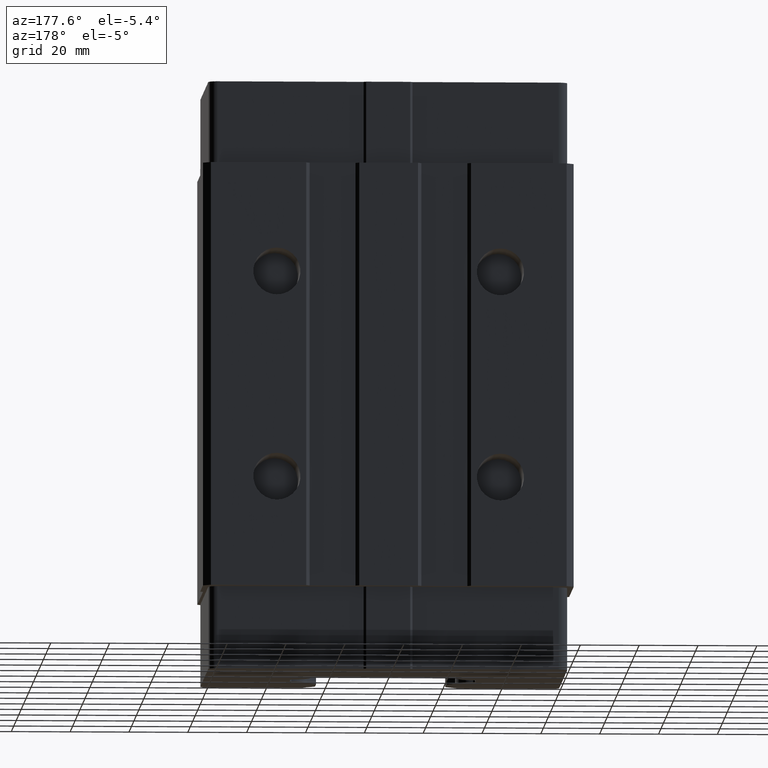
[diagram: clean part render]
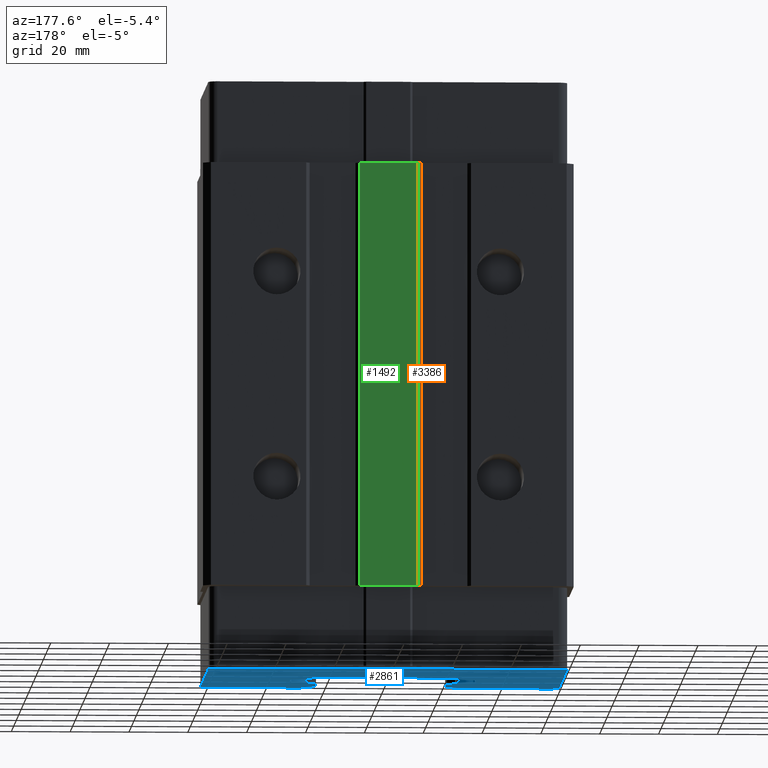
[diagram: same view with three faces highlighted in distinct colors, each labeled with its STEP entity id]
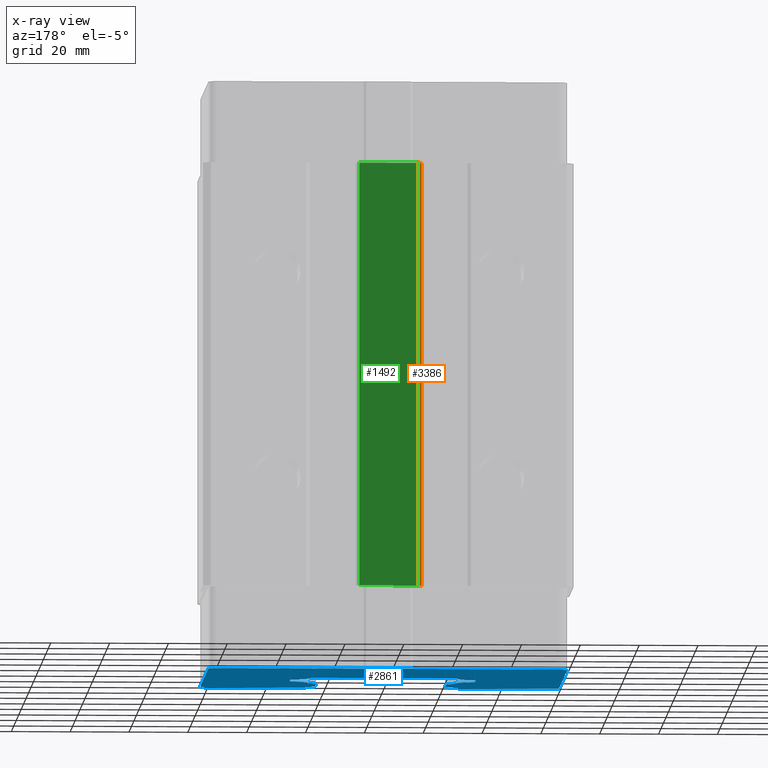
[diagram: x-ray of the same camera — body ghosted, the three highlighted faces saturated]
A machine part, auxiliary view with three faces highlighted in distinct colors.
The next image is the same camera in x-ray (body ghosted, the three faces saturated) — at least one of them is partly hidden behind the body in this view.
Their STEP definitions:

[orange] entity #3386 — the highlighted planar face has unit normal (-0.7071, 0.7071, 0).
#3327 = VERTEX_POINT ( 'NONE', #10679 ) ;
#3330 = EDGE_CURVE ( 'NONE', #3400, #3336, #10743, .T. ) ;
#3336 = VERTEX_POINT ( 'NONE', #10729 ) ;
#3337 = ORIENTED_EDGE ( 'NONE', *, *, #3396, .F. ) ;
#3340 = EDGE_LOOP ( 'NONE', ( #3388, #3389, #3337, #3397 ) ) ;
#3386 = ADVANCED_FACE ( 'NONE', ( #10784 ), #10782, .T. ) ;
#3388 = ORIENTED_EDGE ( 'NONE', *, *, #3407, .F. ) ;
#3389 = ORIENTED_EDGE ( 'NONE', *, *, #3390, .T. ) ;
#3390 = EDGE_CURVE ( 'NONE', #3327, #3391, #10841, .T. ) ;
#3391 = VERTEX_POINT ( 'NONE', #10837 ) ;
#3396 = EDGE_CURVE ( 'NONE', #3400, #3391, #10826, .T. ) ;
#3397 = ORIENTED_EDGE ( 'NONE', *, *, #3330, .T. ) ;
#3400 = VERTEX_POINT ( 'NONE', #10822 ) ;
#3407 = EDGE_CURVE ( 'NONE', #3327, #3336, #10868, .T. ) ;
#10679 = CARTESIAN_POINT ( 'NONE',  ( -10.00000000000000200, 37.00000000000000000, -72.09999999999999400 ) ) ;
#10729 = CARTESIAN_POINT ( 'NONE',  ( -10.00000000000000200, 37.00000000000000000, 72.09999999999999400 ) ) ;
#10735 = DIRECTION ( 'NONE',  ( 0.7071091381847192100, 0.7071044241805192200, 0.0000000000000000000 ) ) ;
#10736 = VECTOR ( 'NONE', #10735, 1000.000000000000000 ) ;
#10737 = CARTESIAN_POINT ( 'NONE',  ( -10.00000000000000000, 37.00000000000000000, 72.09999999999999400 ) ) ;
#10743 = LINE ( 'NONE', #10737, #10736 ) ;
#10778 = DIRECTION ( 'NONE',  ( -0.7071091381847192100, -0.7071044241805192200, 0.0000000000000000000 ) ) ;
#10779 = DIRECTION ( 'NONE',  ( -0.7071044241805192200, 0.7071091381847192100, 0.0000000000000000000 ) ) ;
#10780 = CARTESIAN_POINT ( 'NONE',  ( -10.00000000000000000, 37.00000000000000000, -72.09999999999999400 ) ) ;
#10781 = AXIS2_PLACEMENT_3D ( 'NONE', #10780, #10779, #10778 ) ;
#10782 = PLANE ( 'NONE',  #10781 ) ;
#10784 = FACE_OUTER_BOUND ( 'NONE', #3340, .T. ) ;
#10822 = CARTESIAN_POINT ( 'NONE',  ( -11.20000799995927000, 35.79999999999926500, 72.09999999999999400 ) ) ;
#10823 = DIRECTION ( 'NONE',  ( 0.0000000000000000000, 0.0000000000000000000, -1.000000000000000000 ) ) ;
#10824 = VECTOR ( 'NONE', #10823, 1000.000000000000000 ) ;
#10825 = CARTESIAN_POINT ( 'NONE',  ( -11.20000799996000000, 35.79999999999999700, -72.09999999999999400 ) ) ;
#10826 = LINE ( 'NONE', #10825, #10824 ) ;
#10837 = CARTESIAN_POINT ( 'NONE',  ( -11.20000799995927000, 35.79999999999926500, -72.09999999999999400 ) ) ;
#10838 = DIRECTION ( 'NONE',  ( -0.7071091381847192100, -0.7071044241805192200, 0.0000000000000000000 ) ) ;
#10839 = VECTOR ( 'NONE', #10838, 1000.000000000000000 ) ;
#10840 = CARTESIAN_POINT ( 'NONE',  ( -10.00000000000000000, 37.00000000000000000, -72.09999999999999400 ) ) ;
#10841 = LINE ( 'NONE', #10840, #10839 ) ;
#10865 = DIRECTION ( 'NONE',  ( 0.0000000000000000000, 0.0000000000000000000, 1.000000000000000000 ) ) ;
#10866 = VECTOR ( 'NONE', #10865, 1000.000000000000000 ) ;
#10867 = CARTESIAN_POINT ( 'NONE',  ( -10.00000000000000000, 37.00000000000000000, -72.09999999999999400 ) ) ;
#10868 = LINE ( 'NONE', #10867, #10866 ) ;

[blue] entity #2861 — the highlighted planar face has unit normal (0, 0, 1).
#11 = EDGE_CURVE ( 'NONE', #20, #1022, #3865, .T. ) ;
#20 = VERTEX_POINT ( 'NONE', #3908 ) ;
#26 = EDGE_CURVE ( 'NONE', #599, #20, #3901, .T. ) ;
#43 = EDGE_CURVE ( 'NONE', #471, #992, #3941, .T. ) ;
#58 = VERTEX_POINT ( 'NONE', #3923 ) ;
#108 = EDGE_CURVE ( 'NONE', #1001, #58, #4050, .T. ) ;
#283 = EDGE_CURVE ( 'NONE', #343, #1499, #4387, .T. ) ;
#343 = VERTEX_POINT ( 'NONE', #4475 ) ;
#345 = VERTEX_POINT ( 'NONE', #4470 ) ;
#371 = EDGE_CURVE ( 'NONE', #345, #343, #4495, .T. ) ;
#471 = VERTEX_POINT ( 'NONE', #4653 ) ;
#474 = EDGE_CURVE ( 'NONE', #1012, #471, #4648, .T. ) ;
#501 = EDGE_CURVE ( 'NONE', #1500, #1496, #4719, .T. ) ;
#569 = VERTEX_POINT ( 'NONE', #4837 ) ;
#570 = VERTEX_POINT ( 'NONE', #4839 ) ;
#572 = EDGE_CURVE ( 'NONE', #570, #599, #4901, .T. ) ;
#586 = EDGE_CURVE ( 'NONE', #569, #1001, #4874, .T. ) ;
#599 = VERTEX_POINT ( 'NONE', #4919 ) ;
#837 = EDGE_CURVE ( 'NONE', #6810, #1159, #5357, .T. ) ;
#920 = EDGE_CURVE ( 'NONE', #921, #3692, #5488, .T. ) ;
#921 = VERTEX_POINT ( 'NONE', #5483 ) ;
#932 = EDGE_CURVE ( 'NONE', #6841, #345, #5480, .T. ) ;
#992 = VERTEX_POINT ( 'NONE', #5540 ) ;
#993 = EDGE_CURVE ( 'NONE', #992, #994, #5539, .T. ) ;
#994 = VERTEX_POINT ( 'NONE', #5535 ) ;
#1001 = VERTEX_POINT ( 'NONE', #5528 ) ;
#1002 = VERTEX_POINT ( 'NONE', #5527 ) ;
#1012 = VERTEX_POINT ( 'NONE', #5571 ) ;
#1016 = EDGE_CURVE ( 'NONE', #1496, #1012, #5570, .T. ) ;
#1019 = EDGE_CURVE ( 'NONE', #1022, #1002, #5560, .T. ) ;
#1022 = VERTEX_POINT ( 'NONE', #5615 ) ;
#1069 = EDGE_CURVE ( 'NONE', #1002, #3885, #5705, .T. ) ;
#1078 = EDGE_CURVE ( 'NONE', #3821, #1079, #5684, .T. ) ;
#1079 = VERTEX_POINT ( 'NONE', #5741 ) ;
#1088 = VERTEX_POINT ( 'NONE', #5728 ) ;
#1096 = EDGE_CURVE ( 'NONE', #1079, #1088, #5716, .T. ) ;
#1105 = EDGE_CURVE ( 'NONE', #1128, #1107, #5768, .T. ) ;
#1107 = VERTEX_POINT ( 'NONE', #5764 ) ;
#1122 = EDGE_CURVE ( 'NONE', #1088, #1128, #5744, .T. ) ;
#1128 = VERTEX_POINT ( 'NONE', #5795 ) ;
#1129 = VERTEX_POINT ( 'NONE', #5794 ) ;
#1137 = EDGE_CURVE ( 'NONE', #1107, #1129, #5785, .T. ) ;
#1143 = EDGE_CURVE ( 'NONE', #3819, #3709, #5780, .T. ) ;
#1155 = EDGE_CURVE ( 'NONE', #1129, #3822, #5819, .T. ) ;
#1159 = VERTEX_POINT ( 'NONE', #5810 ) ;
#1496 = VERTEX_POINT ( 'NONE', #6399 ) ;
#1498 = EDGE_CURVE ( 'NONE', #1499, #1500, #6398, .T. ) ;
#1499 = VERTEX_POINT ( 'NONE', #6392 ) ;
#1500 = VERTEX_POINT ( 'NONE', #6391 ) ;
#2861 = ADVANCED_FACE ( 'NONE', ( #10005 ), #10004, .F. ) ;
#2862 = EDGE_LOOP ( 'NONE', ( #2863, #2864, #2865, #2866, #2941, #2942, #2943, #2944, #2945, #2946, #2947, #2948, #2949, #2929, #2930, #2931, #2932, #2933, #2934, #2935, #2936, #2937, #2940, #2921, #2922, #2923, #2924, #2925, #2926, #2927, #2928, #2908, #2909, #2910, #2911, #2912 ) ) ;
#2863 = ORIENTED_EDGE ( 'NONE', *, *, #6926, .F. ) ;
#2864 = ORIENTED_EDGE ( 'NONE', *, *, #837, .F. ) ;
#2865 = ORIENTED_EDGE ( 'NONE', *, *, #6813, .F. ) ;
#2866 = ORIENTED_EDGE ( 'NONE', *, *, #3722, .T. ) ;
#2908 = ORIENTED_EDGE ( 'NONE', *, *, #501, .F. ) ;
#2909 = ORIENTED_EDGE ( 'NONE', *, *, #1498, .F. ) ;
#2910 = ORIENTED_EDGE ( 'NONE', *, *, #283, .F. ) ;
#2911 = ORIENTED_EDGE ( 'NONE', *, *, #371, .F. ) ;
#2912 = ORIENTED_EDGE ( 'NONE', *, *, #932, .F. ) ;
#2920 = EDGE_CURVE ( 'NONE', #2951, #2939, #10036, .T. ) ;
#2921 = ORIENTED_EDGE ( 'NONE', *, *, #2950, .F. ) ;
#2922 = ORIENTED_EDGE ( 'NONE', *, *, #108, .F. ) ;
#2923 = ORIENTED_EDGE ( 'NONE', *, *, #586, .F. ) ;
#2924 = ORIENTED_EDGE ( 'NONE', *, *, #13615, .F. ) ;
#2925 = ORIENTED_EDGE ( 'NONE', *, *, #993, .F. ) ;
#2926 = ORIENTED_EDGE ( 'NONE', *, *, #43, .F. ) ;
#2927 = ORIENTED_EDGE ( 'NONE', *, *, #474, .F. ) ;
#2928 = ORIENTED_EDGE ( 'NONE', *, *, #1016, .F. ) ;
#2929 = ORIENTED_EDGE ( 'NONE', *, *, #1069, .F. ) ;
#2930 = ORIENTED_EDGE ( 'NONE', *, *, #1019, .F. ) ;
#2931 = ORIENTED_EDGE ( 'NONE', *, *, #11, .F. ) ;
#2932 = ORIENTED_EDGE ( 'NONE', *, *, #26, .F. ) ;
#2933 = ORIENTED_EDGE ( 'NONE', *, *, #572, .F. ) ;
#2934 = ORIENTED_EDGE ( 'NONE', *, *, #13633, .F. ) ;
#2935 = ORIENTED_EDGE ( 'NONE', *, *, #3762, .F. ) ;
#2936 = ORIENTED_EDGE ( 'NONE', *, *, #920, .F. ) ;
#2937 = ORIENTED_EDGE ( 'NONE', *, *, #2938, .F. ) ;
#2938 = EDGE_CURVE ( 'NONE', #2939, #921, #10031, .T. ) ;
#2939 = VERTEX_POINT ( 'NONE', #9632 ) ;
#2940 = ORIENTED_EDGE ( 'NONE', *, *, #2920, .F. ) ;
#2941 = ORIENTED_EDGE ( 'NONE', *, *, #1143, .F. ) ;
#2942 = ORIENTED_EDGE ( 'NONE', *, *, #3875, .T. ) ;
#2943 = ORIENTED_EDGE ( 'NONE', *, *, #1155, .F. ) ;
#2944 = ORIENTED_EDGE ( 'NONE', *, *, #1137, .F. ) ;
#2945 = ORIENTED_EDGE ( 'NONE', *, *, #1105, .F. ) ;
#2946 = ORIENTED_EDGE ( 'NONE', *, *, #1122, .F. ) ;
#2947 = ORIENTED_EDGE ( 'NONE', *, *, #1096, .F. ) ;
#2948 = ORIENTED_EDGE ( 'NONE', *, *, #1078, .F. ) ;
#2949 = ORIENTED_EDGE ( 'NONE', *, *, #3879, .F. ) ;
#2950 = EDGE_CURVE ( 'NONE', #58, #2951, #9631, .T. ) ;
#2951 = VERTEX_POINT ( 'NONE', #9627 ) ;
#3668 = VERTEX_POINT ( 'NONE', #11269 ) ;
#3692 = VERTEX_POINT ( 'NONE', #11302 ) ;
#3693 = VERTEX_POINT ( 'NONE', #11301 ) ;
#3709 = VERTEX_POINT ( 'NONE', #11343 ) ;
#3722 = EDGE_CURVE ( 'NONE', #3668, #3709, #11384, .T. ) ;
#3762 = EDGE_CURVE ( 'NONE', #3692, #3693, #11441, .T. ) ;
#3819 = VERTEX_POINT ( 'NONE', #11531 ) ;
#3821 = VERTEX_POINT ( 'NONE', #11526 ) ;
#3822 = VERTEX_POINT ( 'NONE', #11525 ) ;
#3862 = DIRECTION ( 'NONE',  ( -0.7071067811865474600, -0.7071067811865474600, 0.0000000000000000000 ) ) ;
#3863 = VECTOR ( 'NONE', #3862, 1000.000000000000100 ) ;
#3864 = CARTESIAN_POINT ( 'NONE',  ( 24.99110789035000100, -21.00889410965000100, -100.0999999999999900 ) ) ;
#3865 = LINE ( 'NONE', #3864, #3863 ) ;
#3875 = EDGE_CURVE ( 'NONE', #3819, #3822, #11601, .T. ) ;
#3879 = EDGE_CURVE ( 'NONE', #3885, #3821, #11596, .T. ) ;
#3885 = VERTEX_POINT ( 'NONE', #11639 ) ;
#3897 = DIRECTION ( 'NONE',  ( 1.000000000000000000, 0.0000000000000000000, 0.0000000000000000000 ) ) ;
#3898 = DIRECTION ( 'NONE',  ( 0.0000000000000000000, 0.0000000000000000000, 1.000000000000000000 ) ) ;
#3899 = CARTESIAN_POINT ( 'NONE',  ( 30.99002214876000500, -21.12303314876000100, -100.0999999999999900 ) ) ;
#3900 = AXIS2_PLACEMENT_3D ( 'NONE', #3899, #3898, #3897 ) ;
#3901 = CIRCLE ( 'NONE', #3900, 5.999999999999998200 ) ;
#3908 = CARTESIAN_POINT ( 'NONE',  ( 24.99110789035016100, -21.00889410964983700, -100.0999999999999900 ) ) ;
#3923 = CARTESIAN_POINT ( 'NONE',  ( -24.99112634544163600, -1.991095764033635100, -100.0999999999999900 ) ) ;
#3937 = DIRECTION ( 'NONE',  ( 1.000000000000000000, 0.0000000000000000000, 0.0000000000000000000 ) ) ;
#3938 = DIRECTION ( 'NONE',  ( 0.0000000000000000000, 0.0000000000000000000, 1.000000000000000000 ) ) ;
#3939 = CARTESIAN_POINT ( 'NONE',  ( -30.99002214876000500, -21.12303314876000100, -100.0999999999999900 ) ) ;
#3940 = AXIS2_PLACEMENT_3D ( 'NONE', #3939, #3938, #3937 ) ;
#3941 = CIRCLE ( 'NONE', #3940, 5.999999999999998200 ) ;
#4046 = DIRECTION ( 'NONE',  ( 1.000000000000000000, 0.0000000000000000000, 0.0000000000000000000 ) ) ;
#4047 = DIRECTION ( 'NONE',  ( 0.0000000000000000000, 0.0000000000000000000, 1.000000000000000000 ) ) ;
#4048 = CARTESIAN_POINT ( 'NONE',  ( -30.99002214876000500, -1.875990851243000100, -100.0999999999999900 ) ) ;
#4049 = AXIS2_PLACEMENT_3D ( 'NONE', #4048, #4047, #4046 ) ;
#4050 = CIRCLE ( 'NONE', #4049, 5.999999999999998200 ) ;
#4384 = DIRECTION ( 'NONE',  ( 0.7071067811865479100, 0.7071067811865472400, 0.0000000000000000000 ) ) ;
#4385 = VECTOR ( 'NONE', #4384, 999.9999999999998900 ) ;
#4386 = CARTESIAN_POINT ( 'NONE',  ( -27.05901150420000100, -37.91759014795999900, -100.0999999999999900 ) ) ;
#4387 = LINE ( 'NONE', #4386, #4385 ) ;
#4470 = CARTESIAN_POINT ( 'NONE',  ( -58.01602084604000000, -37.91938982693999800, -100.0999999999999900 ) ) ;
#4475 = CARTESIAN_POINT ( 'NONE',  ( -27.05901150419999400, -37.91759014795999100, -100.0999999999999900 ) ) ;
#4492 = DIRECTION ( 'NONE',  ( 0.9999999983101735000, 5.813478159621304000E-005, 0.0000000000000000000 ) ) ;
#4493 = VECTOR ( 'NONE', #4492, 1000.000000000000100 ) ;
#4494 = CARTESIAN_POINT ( 'NONE',  ( -58.01602084604000000, -37.91938982693999800, -100.0999999999999900 ) ) ;
#4495 = LINE ( 'NONE', #4494, #4493 ) ;
#4647 = CARTESIAN_POINT ( 'NONE',  ( -22.53933982822000100, -23.46066217178000100, -100.0999999999999900 ) ) ;
#4648 = LINE ( 'NONE', #4647, #4709 ) ;
#4653 = CARTESIAN_POINT ( 'NONE',  ( -24.99110789035032100, -21.00889410964984400, -100.0999999999999900 ) ) ;
#4708 = DIRECTION ( 'NONE',  ( -0.7071067811865474600, 0.7071067811865474600, 0.0000000000000000000 ) ) ;
#4709 = VECTOR ( 'NONE', #4708, 1000.000000000000100 ) ;
#4716 = DIRECTION ( 'NONE',  ( 0.0000000000000000000, 1.000000000000000000, 0.0000000000000000000 ) ) ;
#4717 = VECTOR ( 'NONE', #4716, 1000.000000000000000 ) ;
#4718 = CARTESIAN_POINT ( 'NONE',  ( -22.10000000000000100, 0.0000000000000000000, -100.0999999999999900 ) ) ;
#4719 = LINE ( 'NONE', #4718, #4717 ) ;
#4837 = CARTESIAN_POINT ( 'NONE',  ( -31.50000000000000000, -8.499969418590000100, -100.0999999999999900 ) ) ;
#4839 = CARTESIAN_POINT ( 'NONE',  ( 31.49999999999981200, -14.50000199998999900, -100.0999999999999900 ) ) ;
#4871 = DIRECTION ( 'NONE',  ( 0.7071067811866975600, 0.7071067811863974700, 0.0000000000000000000 ) ) ;
#4872 = VECTOR ( 'NONE', #4871, 1000.000000000000100 ) ;
#4873 = CARTESIAN_POINT ( 'NONE',  ( -31.50000000000000000, -8.499969418590000100, -100.0999999999999900 ) ) ;
#4874 = LINE ( 'NONE', #4873, #4872 ) ;
#4898 = DIRECTION ( 'NONE',  ( -0.7071067811861976300, -0.7071067811868975200, 0.0000000000000000000 ) ) ;
#4899 = VECTOR ( 'NONE', #4898, 999.9999999999998900 ) ;
#4900 = CARTESIAN_POINT ( 'NONE',  ( 31.50000000000000000, -14.50000199998999900, -100.0999999999999900 ) ) ;
#4901 = LINE ( 'NONE', #4900, #4899 ) ;
#4919 = CARTESIAN_POINT ( 'NONE',  ( 30.87588310964506300, -15.12411889035040600, -100.0999999999999900 ) ) ;
#5353 = DIRECTION ( 'NONE',  ( 1.000000000000000000, 0.0000000000000000000, 0.0000000000000000000 ) ) ;
#5354 = DIRECTION ( 'NONE',  ( 0.0000000000000000000, 0.0000000000000000000, 1.000000000000000000 ) ) ;
#5355 = CARTESIAN_POINT ( 'NONE',  ( -58.01602084604000000, 29.08061017305999800, -100.0999999999999900 ) ) ;
#5356 = AXIS2_PLACEMENT_3D ( 'NONE', #5355, #5354, #5353 ) ;
#5357 = CIRCLE ( 'NONE', #5356, 3.000000000000002700 ) ;
#5476 = DIRECTION ( 'NONE',  ( 1.000000000000000000, 0.0000000000000000000, 0.0000000000000000000 ) ) ;
#5477 = DIRECTION ( 'NONE',  ( 0.0000000000000000000, 0.0000000000000000000, 1.000000000000000000 ) ) ;
#5478 = CARTESIAN_POINT ( 'NONE',  ( -58.01602084604000000, -34.91938982693999800, -100.0999999999999900 ) ) ;
#5479 = AXIS2_PLACEMENT_3D ( 'NONE', #5478, #5477, #5476 ) ;
#5480 = CIRCLE ( 'NONE', #5479, 3.000000000000002700 ) ;
#5483 = CARTESIAN_POINT ( 'NONE',  ( 24.99112634544227500, -1.991095764032666100, -100.0999999999999900 ) ) ;
#5484 = DIRECTION ( 'NONE',  ( 1.000000000000000000, 0.0000000000000000000, 0.0000000000000000000 ) ) ;
#5485 = DIRECTION ( 'NONE',  ( 0.0000000000000000000, 0.0000000000000000000, 1.000000000000000000 ) ) ;
#5486 = CARTESIAN_POINT ( 'NONE',  ( 30.99002214876000500, -1.875990851243000100, -100.0999999999999900 ) ) ;
#5487 = AXIS2_PLACEMENT_3D ( 'NONE', #5486, #5485, #5484 ) ;
#5488 = CIRCLE ( 'NONE', #5487, 5.999999999999998200 ) ;
#5527 = CARTESIAN_POINT ( 'NONE',  ( 22.10000000000000100, -24.52132234356000100, -100.0999999999999900 ) ) ;
#5528 = CARTESIAN_POINT ( 'NONE',  ( -30.87491723596975000, -7.874886654559770000, -100.0999999999999900 ) ) ;
#5535 = CARTESIAN_POINT ( 'NONE',  ( -31.49999999999998600, -14.50000199999998600, -100.0999999999999900 ) ) ;
#5536 = DIRECTION ( 'NONE',  ( -0.7071067811864976100, 0.7071067811865975300, 0.0000000000000000000 ) ) ;
#5537 = VECTOR ( 'NONE', #5536, 1000.000000000000100 ) ;
#5538 = CARTESIAN_POINT ( 'NONE',  ( -30.87588310965000100, -15.12411889034999900, -100.0999999999999900 ) ) ;
#5539 = LINE ( 'NONE', #5538, #5537 ) ;
#5540 = CARTESIAN_POINT ( 'NONE',  ( -30.87588310964984500, -15.12411889035031700, -100.0999999999999900 ) ) ;
#5560 = CIRCLE ( 'NONE', #5624, 1.500000000000001300 ) ;
#5566 = DIRECTION ( 'NONE',  ( 1.000000000000000000, 0.0000000000000000000, 0.0000000000000000000 ) ) ;
#5567 = DIRECTION ( 'NONE',  ( 0.0000000000000000000, 0.0000000000000000000, 1.000000000000000000 ) ) ;
#5568 = CARTESIAN_POINT ( 'NONE',  ( -23.60000000000000100, -24.52132234356000100, -100.0999999999999900 ) ) ;
#5569 = AXIS2_PLACEMENT_3D ( 'NONE', #5568, #5567, #5566 ) ;
#5570 = CIRCLE ( 'NONE', #5569, 1.500000000000001300 ) ;
#5571 = CARTESIAN_POINT ( 'NONE',  ( -22.53933982822000100, -23.46066217178000100, -100.0999999999999900 ) ) ;
#5615 = CARTESIAN_POINT ( 'NONE',  ( 22.53933982822060900, -23.46066217178060900, -100.0999999999999900 ) ) ;
#5621 = DIRECTION ( 'NONE',  ( 1.000000000000000000, 0.0000000000000000000, 0.0000000000000000000 ) ) ;
#5622 = DIRECTION ( 'NONE',  ( 0.0000000000000000000, 0.0000000000000000000, 1.000000000000000000 ) ) ;
#5623 = CARTESIAN_POINT ( 'NONE',  ( 23.60000000000000100, -24.52132234356000100, -100.0999999999999900 ) ) ;
#5624 = AXIS2_PLACEMENT_3D ( 'NONE', #5623, #5622, #5621 ) ;
#5683 = CARTESIAN_POINT ( 'NONE',  ( 22.53933982822000100, -33.39791847197999900, -100.0999999999999900 ) ) ;
#5684 = LINE ( 'NONE', #5683, #5743 ) ;
#5695 = DIRECTION ( 'NONE',  ( 0.0000000000000000000, -1.000000000000000000, 0.0000000000000000000 ) ) ;
#5696 = VECTOR ( 'NONE', #5695, 1000.000000000000000 ) ;
#5697 = CARTESIAN_POINT ( 'NONE',  ( 22.10000000000000100, 0.0000000000000000000, -100.0999999999999900 ) ) ;
#5705 = LINE ( 'NONE', #5697, #5696 ) ;
#5713 = DIRECTION ( 'NONE',  ( 0.9999999983103796700, -5.813123822750832700E-005, 0.0000000000000000000 ) ) ;
#5714 = VECTOR ( 'NONE', #5713, 999.9999999999998900 ) ;
#5715 = CARTESIAN_POINT ( 'NONE',  ( 27.05901347663000000, -37.91759212038999700, -100.0999999999999900 ) ) ;
#5716 = LINE ( 'NONE', #5715, #5714 ) ;
#5728 = CARTESIAN_POINT ( 'NONE',  ( 57.98397915396000000, -37.91938982693999800, -100.0999999999999900 ) ) ;
#5741 = CARTESIAN_POINT ( 'NONE',  ( 27.05901347662999600, -37.91759212038999000, -100.0999999999999900 ) ) ;
#5742 = DIRECTION ( 'NONE',  ( 0.7071067811865479100, -0.7071067811865472400, 0.0000000000000000000 ) ) ;
#5743 = VECTOR ( 'NONE', #5742, 999.9999999999998900 ) ;
#5744 = CIRCLE ( 'NONE', #5809, 3.000000000000002700 ) ;
#5764 = CARTESIAN_POINT ( 'NONE',  ( 60.98397915396000700, 29.08061017305999800, -100.0999999999999900 ) ) ;
#5765 = DIRECTION ( 'NONE',  ( 0.0000000000000000000, 1.000000000000000000, 0.0000000000000000000 ) ) ;
#5766 = VECTOR ( 'NONE', #5765, 1000.000000000000000 ) ;
#5767 = CARTESIAN_POINT ( 'NONE',  ( 60.98397915396000000, 0.0000000000000000000, -100.0999999999999900 ) ) ;
#5768 = LINE ( 'NONE', #5767, #5766 ) ;
#5777 = DIRECTION ( 'NONE',  ( -1.000000000000000000, 0.0000000000000000000, 0.0000000000000000000 ) ) ;
#5778 = VECTOR ( 'NONE', #5777, 1000.000000000000000 ) ;
#5779 = CARTESIAN_POINT ( 'NONE',  ( 0.0000000000000000000, 32.88061017305999900, -100.0999999999999900 ) ) ;
#5780 = LINE ( 'NONE', #5779, #5778 ) ;
#5781 = DIRECTION ( 'NONE',  ( 1.000000000000000000, 0.0000000000000000000, 0.0000000000000000000 ) ) ;
#5782 = DIRECTION ( 'NONE',  ( 0.0000000000000000000, 0.0000000000000000000, 1.000000000000000000 ) ) ;
#5783 = CARTESIAN_POINT ( 'NONE',  ( 57.98397915396000000, 29.08061017305999800, -100.0999999999999900 ) ) ;
#5784 = AXIS2_PLACEMENT_3D ( 'NONE', #5783, #5782, #5781 ) ;
#5785 = CIRCLE ( 'NONE', #5784, 3.000000000000002700 ) ;
#5794 = CARTESIAN_POINT ( 'NONE',  ( 57.98397915396000000, 32.08061017306000200, -100.0999999999999900 ) ) ;
#5795 = CARTESIAN_POINT ( 'NONE',  ( 60.98397915396000000, -34.91938982693999800, -100.0999999999999900 ) ) ;
#5806 = DIRECTION ( 'NONE',  ( 1.000000000000000000, 0.0000000000000000000, 0.0000000000000000000 ) ) ;
#5807 = DIRECTION ( 'NONE',  ( 0.0000000000000000000, 0.0000000000000000000, 1.000000000000000000 ) ) ;
#5808 = CARTESIAN_POINT ( 'NONE',  ( 57.98397915396000000, -34.91938982693999800, -100.0999999999999900 ) ) ;
#5809 = AXIS2_PLACEMENT_3D ( 'NONE', #5808, #5807, #5806 ) ;
#5810 = CARTESIAN_POINT ( 'NONE',  ( -61.01602084604000000, 29.08061017305999800, -100.0999999999999900 ) ) ;
#5816 = DIRECTION ( 'NONE',  ( -1.000000000000000000, 0.0000000000000000000, 0.0000000000000000000 ) ) ;
#5817 = VECTOR ( 'NONE', #5816, 1000.000000000000000 ) ;
#5818 = CARTESIAN_POINT ( 'NONE',  ( 0.0000000000000000000, 32.08061017306000200, -100.0999999999999900 ) ) ;
#5819 = LINE ( 'NONE', #5818, #5817 ) ;
#6391 = CARTESIAN_POINT ( 'NONE',  ( -22.10000000000000100, -32.33725830019999800, -100.0999999999999900 ) ) ;
#6392 = CARTESIAN_POINT ( 'NONE',  ( -22.53933982821983800, -33.39791847198016200, -100.0999999999999900 ) ) ;
#6393 = DIRECTION ( 'NONE',  ( 1.000000000000000000, 0.0000000000000000000, 0.0000000000000000000 ) ) ;
#6394 = DIRECTION ( 'NONE',  ( 0.0000000000000000000, 0.0000000000000000000, 1.000000000000000000 ) ) ;
#6395 = CARTESIAN_POINT ( 'NONE',  ( -23.60000000000000100, -32.33725830019999800, -100.0999999999999900 ) ) ;
#6396 = AXIS2_PLACEMENT_3D ( 'NONE', #6395, #6394, #6393 ) ;
#6398 = CIRCLE ( 'NONE', #6396, 1.500000000000001300 ) ;
#6399 = CARTESIAN_POINT ( 'NONE',  ( -22.09999999999954700, -24.52132234356000100, -100.0999999999999900 ) ) ;
#6810 = VERTEX_POINT ( 'NONE', #11681 ) ;
#6813 = EDGE_CURVE ( 'NONE', #3668, #6810, #11734, .T. ) ;
#6841 = VERTEX_POINT ( 'NONE', #11792 ) ;
#6926 = EDGE_CURVE ( 'NONE', #1159, #6841, #11930, .T. ) ;
#9619 = DIRECTION ( 'NONE',  ( 0.7071067811864976100, -0.7071067811865975300, 0.0000000000000000000 ) ) ;
#9627 = CARTESIAN_POINT ( 'NONE',  ( -23.00003058140976000, 8.845365127493426700E-014, -100.0999999999999900 ) ) ;
#9628 = DIRECTION ( 'NONE',  ( 0.7071067811861857500, 0.7071067811869091700, 0.0000000000000000000 ) ) ;
#9629 = VECTOR ( 'NONE', #9628, 1000.000000000000100 ) ;
#9630 = CARTESIAN_POINT ( 'NONE',  ( -24.99112634544000100, -1.991095764031999900, -100.0999999999999900 ) ) ;
#9631 = LINE ( 'NONE', #9630, #9629 ) ;
#9632 = CARTESIAN_POINT ( 'NONE',  ( 23.00003058140994800, 5.220335357172395900E-014, -100.0999999999999900 ) ) ;
#9633 = VECTOR ( 'NONE', #9619, 1000.000000000000100 ) ;
#10000 = DIRECTION ( 'NONE',  ( 1.000000000000000000, 0.0000000000000000000, 0.0000000000000000000 ) ) ;
#10001 = DIRECTION ( 'NONE',  ( 0.0000000000000000000, 0.0000000000000000000, 1.000000000000000000 ) ) ;
#10002 = CARTESIAN_POINT ( 'NONE',  ( 0.0000000000000000000, 0.0000000000000000000, -100.0999999999999900 ) ) ;
#10003 = AXIS2_PLACEMENT_3D ( 'NONE', #10002, #10001, #10000 ) ;
#10004 = PLANE ( 'NONE',  #10003 ) ;
#10005 = FACE_OUTER_BOUND ( 'NONE', #2862, .T. ) ;
#10030 = CARTESIAN_POINT ( 'NONE',  ( 23.00003058141000200, -1.137000000000000100E-013, -100.0999999999999900 ) ) ;
#10031 = LINE ( 'NONE', #10030, #9633 ) ;
#10033 = DIRECTION ( 'NONE',  ( 1.000000000000000000, 0.0000000000000000000, 0.0000000000000000000 ) ) ;
#10034 = VECTOR ( 'NONE', #10033, 1000.000000000000000 ) ;
#10035 = CARTESIAN_POINT ( 'NONE',  ( -23.00003058141000200, 1.137000000000000100E-013, -100.0999999999999900 ) ) ;
#10036 = LINE ( 'NONE', #10035, #10034 ) ;
#11269 = CARTESIAN_POINT ( 'NONE',  ( -8.316069549443000100, 32.08061017306000200, -100.0999999999999900 ) ) ;
#11301 = CARTESIAN_POINT ( 'NONE',  ( 31.50000000000080600, -8.499969418594197600, -100.0999999999999900 ) ) ;
#11302 = CARTESIAN_POINT ( 'NONE',  ( 30.87491723596988500, -7.874886654559771800, -100.0999999999999900 ) ) ;
#11343 = CARTESIAN_POINT ( 'NONE',  ( -7.516069549443001200, 32.88061017305999900, -100.1000000000000100 ) ) ;
#11381 = DIRECTION ( 'NONE',  ( 0.7071067811865474600, 0.7071067811865474600, 0.0000000000000000000 ) ) ;
#11382 = VECTOR ( 'NONE', #11381, 1000.000000000000100 ) ;
#11383 = CARTESIAN_POINT ( 'NONE',  ( -7.516069549443001200, 32.88061017305999900, -100.1000000000000100 ) ) ;
#11384 = LINE ( 'NONE', #11383, #11382 ) ;
#11438 = DIRECTION ( 'NONE',  ( 0.7071067811864475400, -0.7071067811866474900, 0.0000000000000000000 ) ) ;
#11439 = VECTOR ( 'NONE', #11438, 1000.000000000000000 ) ;
#11440 = CARTESIAN_POINT ( 'NONE',  ( 30.87491723596999900, -7.874886654560000900, -100.0999999999999900 ) ) ;
#11441 = LINE ( 'NONE', #11440, #11439 ) ;
#11525 = CARTESIAN_POINT ( 'NONE',  ( 8.283930450556999500, 32.08061017306000200, -100.0999999999999900 ) ) ;
#11526 = CARTESIAN_POINT ( 'NONE',  ( 22.53933982822000100, -33.39791847197999900, -100.0999999999999900 ) ) ;
#11531 = CARTESIAN_POINT ( 'NONE',  ( 7.483930450556220700, 32.88061017306014800, -100.0999999999999900 ) ) ;
#11592 = DIRECTION ( 'NONE',  ( 1.000000000000000000, 0.0000000000000000000, 0.0000000000000000000 ) ) ;
#11593 = DIRECTION ( 'NONE',  ( 0.0000000000000000000, 0.0000000000000000000, 1.000000000000000000 ) ) ;
#11594 = CARTESIAN_POINT ( 'NONE',  ( 23.60000000000000100, -32.33725830019999800, -100.0999999999999900 ) ) ;
#11595 = AXIS2_PLACEMENT_3D ( 'NONE', #11594, #11593, #11592 ) ;
#11596 = CIRCLE ( 'NONE', #11595, 1.500000000000001300 ) ;
#11598 = DIRECTION ( 'NONE',  ( 0.7071067811865975300, -0.7071067811864976100, 0.0000000000000000000 ) ) ;
#11599 = VECTOR ( 'NONE', #11598, 1000.000000000000100 ) ;
#11600 = CARTESIAN_POINT ( 'NONE',  ( 8.283930450556999500, 32.08061017306000200, -100.0999999999999900 ) ) ;
#11601 = LINE ( 'NONE', #11600, #11599 ) ;
#11639 = CARTESIAN_POINT ( 'NONE',  ( 22.09999999999977800, -32.33725830019999800, -100.0999999999999900 ) ) ;
#11681 = CARTESIAN_POINT ( 'NONE',  ( -58.01602084604000000, 32.08061017306000200, -100.0999999999999900 ) ) ;
#11731 = DIRECTION ( 'NONE',  ( -1.000000000000000000, 0.0000000000000000000, 0.0000000000000000000 ) ) ;
#11732 = VECTOR ( 'NONE', #11731, 1000.000000000000000 ) ;
#11733 = CARTESIAN_POINT ( 'NONE',  ( 0.0000000000000000000, 32.08061017306000200, -100.0999999999999900 ) ) ;
#11734 = LINE ( 'NONE', #11733, #11732 ) ;
#11792 = CARTESIAN_POINT ( 'NONE',  ( -61.01602084604000700, -34.91938982693999800, -100.0999999999999900 ) ) ;
#11927 = DIRECTION ( 'NONE',  ( 0.0000000000000000000, -1.000000000000000000, 0.0000000000000000000 ) ) ;
#11928 = VECTOR ( 'NONE', #11927, 1000.000000000000000 ) ;
#11929 = CARTESIAN_POINT ( 'NONE',  ( -61.01602084604000000, 0.0000000000000000000, -100.0999999999999900 ) ) ;
#11930 = LINE ( 'NONE', #11929, #11928 ) ;
#13273 = DIRECTION ( 'NONE',  ( 0.0000000000000000000, 1.000000000000000000, 0.0000000000000000000 ) ) ;
#13274 = VECTOR ( 'NONE', #13273, 1000.000000000000000 ) ;
#13275 = CARTESIAN_POINT ( 'NONE',  ( -31.50000000000000000, 0.0000000000000000000, -100.0999999999999900 ) ) ;
#13280 = LINE ( 'NONE', #13275, #13274 ) ;
#13309 = DIRECTION ( 'NONE',  ( 0.0000000000000000000, -1.000000000000000000, 0.0000000000000000000 ) ) ;
#13310 = VECTOR ( 'NONE', #13309, 1000.000000000000000 ) ;
#13311 = CARTESIAN_POINT ( 'NONE',  ( 31.50000000000000000, 0.0000000000000000000, -100.0999999999999900 ) ) ;
#13312 = LINE ( 'NONE', #13311, #13310 ) ;
#13615 = EDGE_CURVE ( 'NONE', #994, #569, #13280, .T. ) ;
#13633 = EDGE_CURVE ( 'NONE', #3693, #570, #13312, .T. ) ;

[green] entity #1492 — the highlighted planar face has unit normal (0, 1, 0).
#272 = ORIENTED_EDGE ( 'NONE', *, *, #2521, .F. ) ;
#1492 = ADVANCED_FACE ( 'NONE', ( #6346 ), #6345, .T. ) ;
#2184 = ORIENTED_EDGE ( 'NONE', *, *, #3401, .T. ) ;
#2521 = EDGE_CURVE ( 'NONE', #3402, #3336, #9368, .T. ) ;
#3162 = ORIENTED_EDGE ( 'NONE', *, *, #3407, .T. ) ;
#3176 = EDGE_LOOP ( 'NONE', ( #2184, #3304, #3162, #272 ) ) ;
#3304 = ORIENTED_EDGE ( 'NONE', *, *, #3504, .T. ) ;
#3327 = VERTEX_POINT ( 'NONE', #10679 ) ;
#3336 = VERTEX_POINT ( 'NONE', #10729 ) ;
#3338 = VERTEX_POINT ( 'NONE', #10728 ) ;
#3401 = EDGE_CURVE ( 'NONE', #3402, #3338, #10821, .T. ) ;
#3402 = VERTEX_POINT ( 'NONE', #10817 ) ;
#3407 = EDGE_CURVE ( 'NONE', #3327, #3336, #10868, .T. ) ;
#3504 = EDGE_CURVE ( 'NONE', #3338, #3327, #11023, .T. ) ;
#6341 = DIRECTION ( 'NONE',  ( 0.0000000000000000000, 0.0000000000000000000, 1.000000000000000000 ) ) ;
#6342 = DIRECTION ( 'NONE',  ( 0.0000000000000000000, 1.000000000000000000, 0.0000000000000000000 ) ) ;
#6343 = CARTESIAN_POINT ( 'NONE',  ( 10.00000000000000000, 37.00000000000000000, -72.09999999999999400 ) ) ;
#6344 = AXIS2_PLACEMENT_3D ( 'NONE', #6343, #6342, #6341 ) ;
#6345 = PLANE ( 'NONE',  #6344 ) ;
#6346 = FACE_OUTER_BOUND ( 'NONE', #3176, .T. ) ;
#9365 = DIRECTION ( 'NONE',  ( -1.000000000000000000, 0.0000000000000000000, 0.0000000000000000000 ) ) ;
#9366 = VECTOR ( 'NONE', #9365, 1000.000000000000000 ) ;
#9367 = CARTESIAN_POINT ( 'NONE',  ( 0.0000000000000000000, 37.00000000000000000, 72.09999999999999400 ) ) ;
#9368 = LINE ( 'NONE', #9367, #9366 ) ;
#10679 = CARTESIAN_POINT ( 'NONE',  ( -10.00000000000000200, 37.00000000000000000, -72.09999999999999400 ) ) ;
#10728 = CARTESIAN_POINT ( 'NONE',  ( 10.00000000000051900, 37.00000000000051900, -72.09999999999999400 ) ) ;
#10729 = CARTESIAN_POINT ( 'NONE',  ( -10.00000000000000200, 37.00000000000000000, 72.09999999999999400 ) ) ;
#10817 = CARTESIAN_POINT ( 'NONE',  ( 10.00000000000051900, 37.00000000000051900, 72.09999999999999400 ) ) ;
#10818 = DIRECTION ( 'NONE',  ( 0.0000000000000000000, 0.0000000000000000000, -1.000000000000000000 ) ) ;
#10819 = VECTOR ( 'NONE', #10818, 1000.000000000000000 ) ;
#10820 = CARTESIAN_POINT ( 'NONE',  ( 10.00000000000000000, 37.00000000000000000, -72.09999999999999400 ) ) ;
#10821 = LINE ( 'NONE', #10820, #10819 ) ;
#10865 = DIRECTION ( 'NONE',  ( 0.0000000000000000000, 0.0000000000000000000, 1.000000000000000000 ) ) ;
#10866 = VECTOR ( 'NONE', #10865, 1000.000000000000000 ) ;
#10867 = CARTESIAN_POINT ( 'NONE',  ( -10.00000000000000000, 37.00000000000000000, -72.09999999999999400 ) ) ;
#10868 = LINE ( 'NONE', #10867, #10866 ) ;
#11016 = DIRECTION ( 'NONE',  ( -1.000000000000000000, 0.0000000000000000000, 0.0000000000000000000 ) ) ;
#11017 = VECTOR ( 'NONE', #11016, 1000.000000000000000 ) ;
#11018 = CARTESIAN_POINT ( 'NONE',  ( 0.0000000000000000000, 37.00000000000000000, -72.09999999999999400 ) ) ;
#11023 = LINE ( 'NONE', #11018, #11017 ) ;